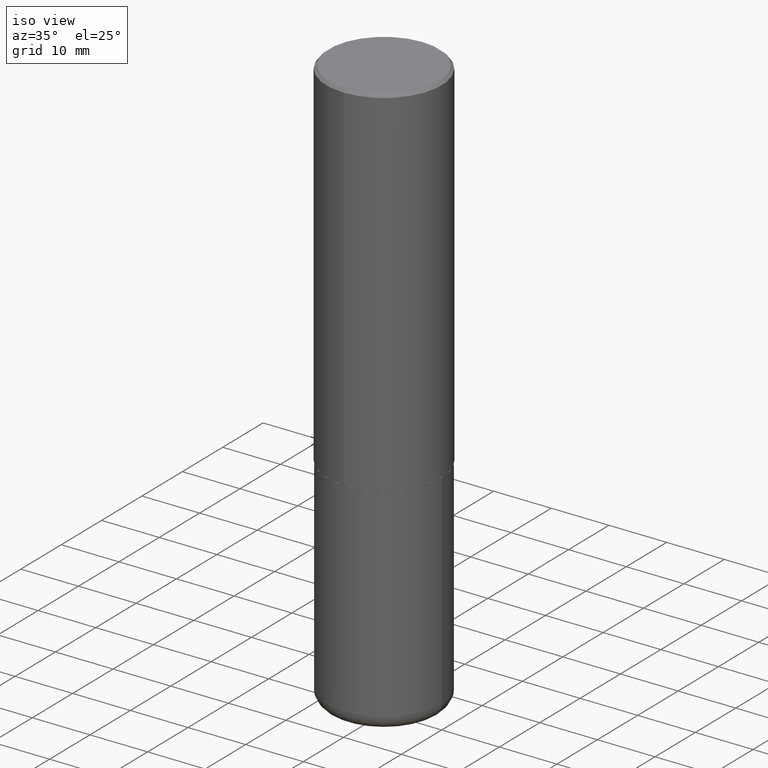
[diagram: clean part render]
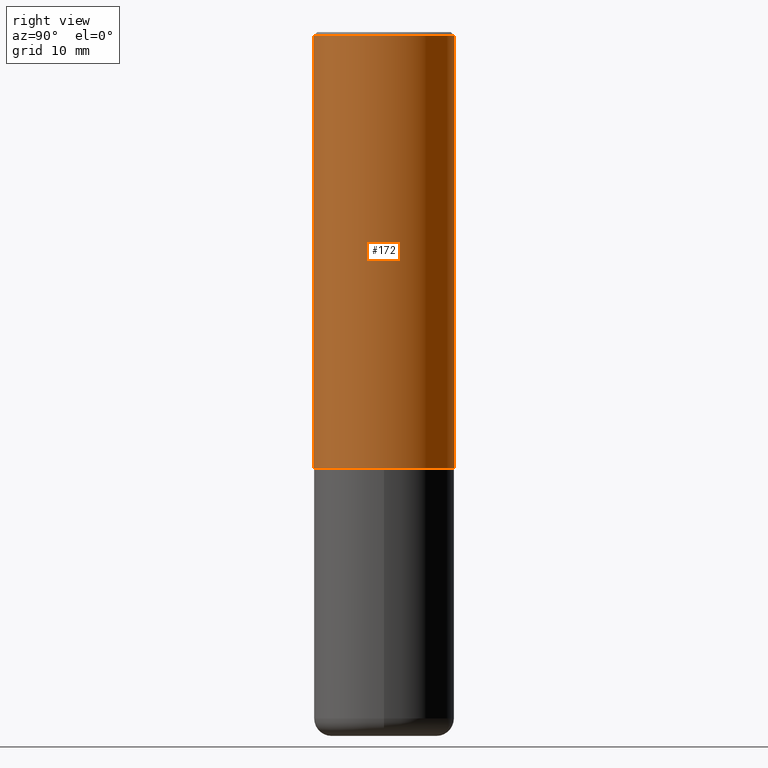
[diagram: tour spotlight — one face highlighted and labeled with its STEP entity id]
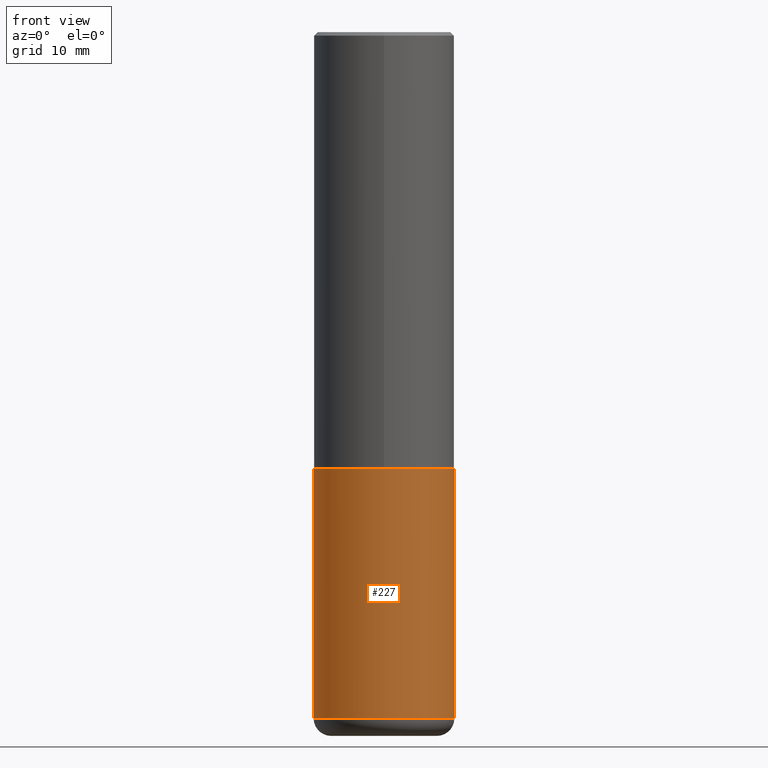
[diagram: tour spotlight — one face highlighted and labeled with its STEP entity id]
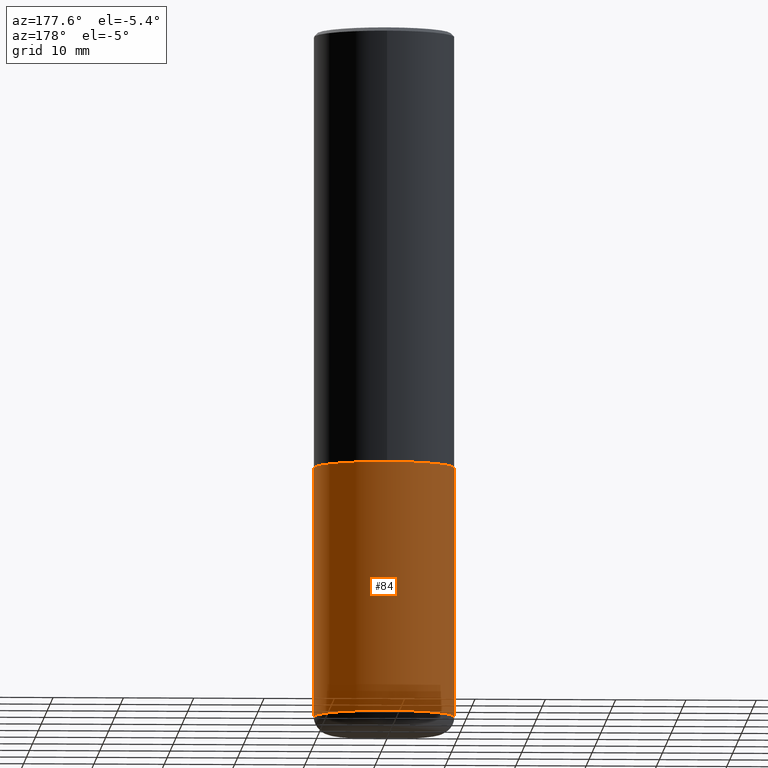
[diagram: tour spotlight — one face highlighted and labeled with its STEP entity id]
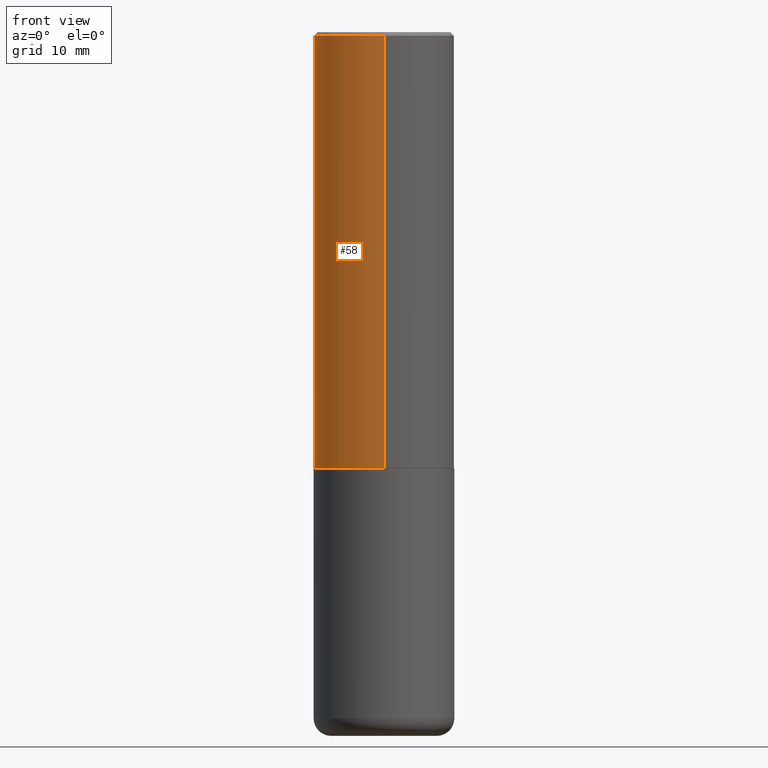
[diagram: tour spotlight — one face highlighted and labeled with its STEP entity id]
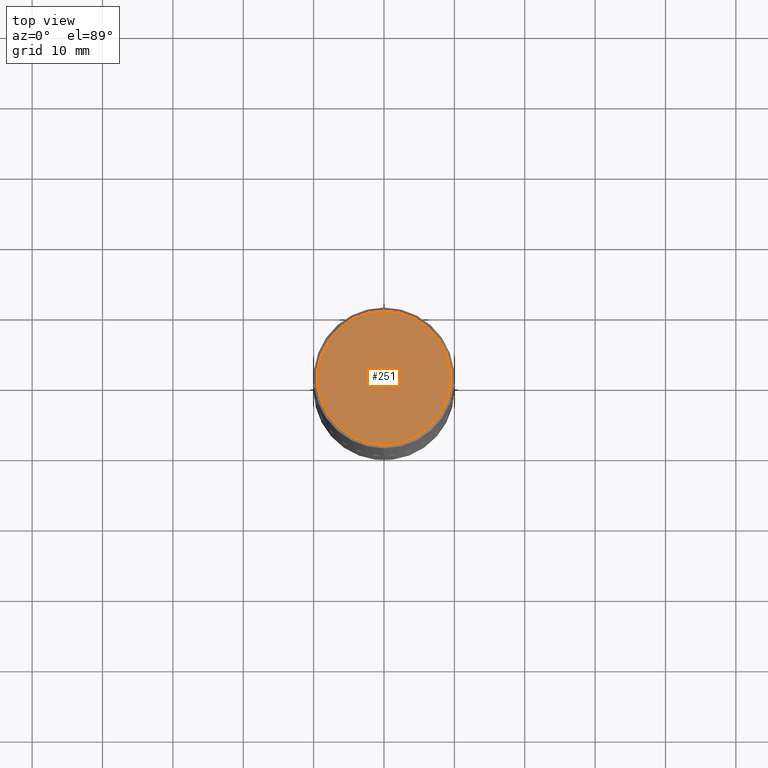
[diagram: tour spotlight — one face highlighted and labeled with its STEP entity id]
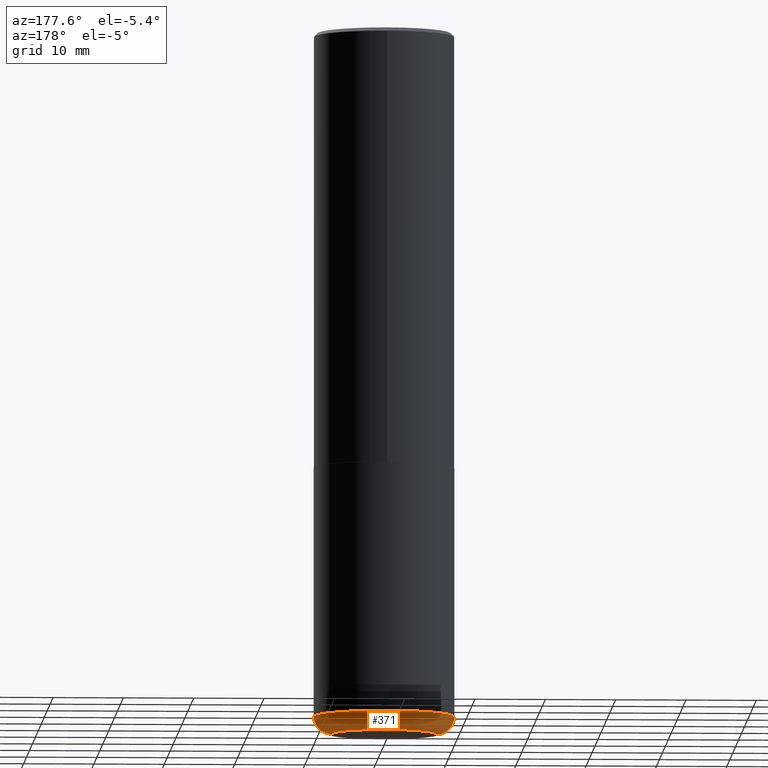
[diagram: tour spotlight — one face highlighted and labeled with its STEP entity id]
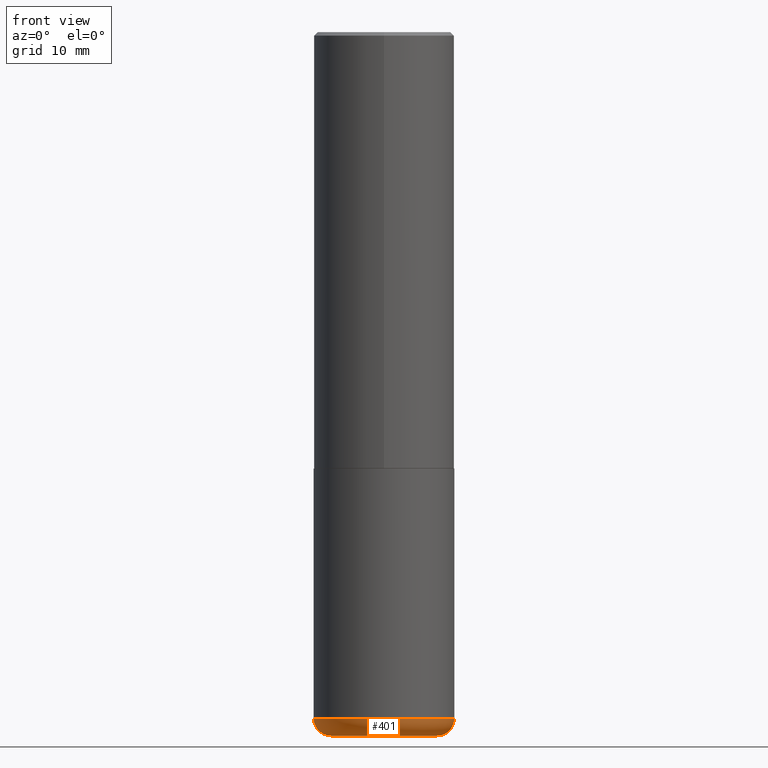
[diagram: tour spotlight — one face highlighted and labeled with its STEP entity id]
A machine part: a face-by-face anatomy tour. The part has 14 B-rep faces; the first image is the clean iso view, then the 7 largest visible faces are spotlighted one at a time (largest first), each with its STEP entity span.

Face 1 — right view, entity #172. In plain terms, the highlighted cylindrical surface (partial cylindrical patch) has radius 10 mm, axis along (-0, 0, 1).
Definition (entity closure, byte-faithful):
#5 = VERTEX_POINT ( 'NONE', #80 ) ;
#7 = CARTESIAN_POINT ( 'NONE',  ( 2.749192406205084005E-15, 0.3937000000000000499, -0.02000000000000146105 ) ) ;
#24 = AXIS2_PLACEMENT_3D ( 'NONE', #356, #162, #60 ) ;
#25 = CARTESIAN_POINT ( 'NONE',  ( 5.968825766271391436E-29, -8.515820155496419489E-15, -2.439900000000000180 ) ) ;
#35 = CIRCLE ( 'NONE', #275, 0.3937000000000003830 ) ;
#36 = VERTEX_POINT ( 'NONE', #7 ) ;
#44 = VERTEX_POINT ( 'NONE', #75 ) ;
#60 = DIRECTION ( 'NONE',  ( -6.982962677686265133E-15, -1.000000000000000000, 3.491137977679279029E-15 ) ) ;
#65 = LINE ( 'NONE', #225, #386 ) ;
#75 = CARTESIAN_POINT ( 'NONE',  ( -2.749192406205025630E-15, -0.3937000000000088762, -2.439899999999998847 ) ) ;
#80 = CARTESIAN_POINT ( 'NONE',  ( 2.797406750687546341E-15, 0.3936999999999918343, -2.439900000000001512 ) ) ;
#86 = CYLINDRICAL_SURFACE ( 'NONE', #148, 0.3937000000000002164 ) ;
#118 = DIRECTION ( 'NONE',  ( -2.446340327993520744E-29, 3.490233270009598583E-15, 1.000000000000000000 ) ) ;
#121 = DIRECTION ( 'NONE',  ( -2.446340327993520744E-29, 3.490233270009598583E-15, 1.000000000000000000 ) ) ;
#123 = DIRECTION ( 'NONE',  ( -2.446340327993520744E-29, 3.490233270009598583E-15, 1.000000000000000000 ) ) ;
#147 = DIRECTION ( 'NONE',  ( -2.446340327993520744E-29, 3.490233270009598583E-15, 1.000000000000000000 ) ) ;
#148 = AXIS2_PLACEMENT_3D ( 'NONE', #320, #147, #288 ) ;
#156 = EDGE_CURVE ( 'NONE', #44, #5, #35, .T. ) ;
#158 = CIRCLE ( 'NONE', #24, 0.3937000000000001054 ) ;
#162 = DIRECTION ( 'NONE',  ( -2.446340327993520744E-29, 3.490233270009598583E-15, 1.000000000000000000 ) ) ;
#164 = ORIENTED_EDGE ( 'NONE', *, *, #364, .F. ) ;
#165 = ORIENTED_EDGE ( 'NONE', *, *, #308, .F. ) ;
#172 = ADVANCED_FACE ( 'NONE', ( #353 ), #86, .T. ) ;
#199 = VERTEX_POINT ( 'NONE', #379 ) ;
#225 = CARTESIAN_POINT ( 'NONE',  ( -2.749192406205084400E-15, -0.3937000000000002164, 1.374104838402779619E-15 ) ) ;
#230 = EDGE_CURVE ( 'NONE', #5, #36, #318, .T. ) ;
#265 = ORIENTED_EDGE ( 'NONE', *, *, #230, .T. ) ;
#275 = AXIS2_PLACEMENT_3D ( 'NONE', #25, #121, #382 ) ;
#288 = DIRECTION ( 'NONE',  ( -6.982962677686265922E-15, -1.000000000000000000, 3.490233270009598189E-15 ) ) ;
#306 = VECTOR ( 'NONE', #118, 39.37007874015748143 ) ;
#308 = EDGE_CURVE ( 'NONE', #199, #36, #158, .T. ) ;
#318 = LINE ( 'NONE', #412, #306 ) ;
#320 = CARTESIAN_POINT ( 'NONE',  ( 0.000000000000000000, 0.000000000000000000, 0.000000000000000000 ) ) ;
#353 = FACE_OUTER_BOUND ( 'NONE', #389, .T. ) ;
#356 = CARTESIAN_POINT ( 'NONE',  ( 4.892680655987062718E-31, -6.980466540019226157E-17, -0.02000000000000008715 ) ) ;
#364 = EDGE_CURVE ( 'NONE', #44, #199, #65, .T. ) ;
#366 = ORIENTED_EDGE ( 'NONE', *, *, #156, .T. ) ;
#379 = CARTESIAN_POINT ( 'NONE',  ( -2.700978061722651647E-15, -0.3937000000000001609, -0.01999999999999870978 ) ) ;
#382 = DIRECTION ( 'NONE',  ( -6.982962677686265133E-15, -1.000000000000000000, 3.469453890861392812E-15 ) ) ;
#386 = VECTOR ( 'NONE', #123, 39.37007874015748143 ) ;
#389 = EDGE_LOOP ( 'NONE', ( #366, #265, #165, #164 ) ) ;
#412 = CARTESIAN_POINT ( 'NONE',  ( 2.797406750687515575E-15, 0.3937000000000002164, -1.374104838402779619E-15 ) ) ;

Face 2 — front view, entity #227. In plain terms, the highlighted cylindrical surface (partial cylindrical patch) has radius 10 mm, axis along (-0, 0, 1).
Definition (entity closure, byte-faithful):
#17 = LINE ( 'NONE', #142, #312 ) ;
#22 = CARTESIAN_POINT ( 'NONE',  ( 5.969144809017300159E-29, -8.522356799982234543E-15, -2.440900000000000070 ) ) ;
#51 = DIRECTION ( 'NONE',  ( -2.445468806185136597E-29, 3.491481338843145583E-15, 1.000000000000000000 ) ) ;
#55 = DIRECTION ( 'NONE',  ( 1.000000000000000000, -6.982962677686266711E-15, 4.876176775795935793E-29 ) ) ;
#61 = CIRCLE ( 'NONE', #96, 0.3937000000000001054 ) ;
#76 = EDGE_CURVE ( 'NONE', #402, #194, #17, .T. ) ;
#83 = DIRECTION ( 'NONE',  ( -2.445468806185136877E-29, 3.491481338843145188E-15, 1.000000000000000000 ) ) ;
#96 = AXIS2_PLACEMENT_3D ( 'NONE', #319, #191, #188 ) ;
#107 = ORIENTED_EDGE ( 'NONE', *, *, #76, .T. ) ;
#132 = VERTEX_POINT ( 'NONE', #408 ) ;
#142 = CARTESIAN_POINT ( 'NONE',  ( 0.3937000000000001054, -2.749192406205084005E-15, 1.919750796630860452E-29 ) ) ;
#144 = CARTESIAN_POINT ( 'NONE',  ( 0.000000000000000000, 0.000000000000000000, 0.000000000000000000 ) ) ;
#149 = EDGE_CURVE ( 'NONE', #418, #402, #61, .T. ) ;
#154 = CARTESIAN_POINT ( 'NONE',  ( 0.3936999999999999389, -1.615159267348838211E-14, -3.838600000000000012 ) ) ;
#186 = DIRECTION ( 'NONE',  ( 1.000000000000000000, -6.982962677686267499E-15, 0.000000000000000000 ) ) ;
#188 = DIRECTION ( 'NONE',  ( 1.000000000000000000, -6.982962677686266711E-15, 0.000000000000000000 ) ) ;
#189 = EDGE_CURVE ( 'NONE', #418, #132, #413, .T. ) ;
#191 = DIRECTION ( 'NONE',  ( -2.445468806185136597E-29, 3.491481338843145583E-15, 1.000000000000000000 ) ) ;
#194 = VERTEX_POINT ( 'NONE', #283 ) ;
#212 = FACE_OUTER_BOUND ( 'NONE', #261, .T. ) ;
#227 = ADVANCED_FACE ( 'NONE', ( #212 ), #349, .T. ) ;
#228 = CARTESIAN_POINT ( 'NONE',  ( -0.3936999999999999389, -1.060499351659578174E-14, -3.838600000000000012 ) ) ;
#234 = ORIENTED_EDGE ( 'NONE', *, *, #149, .T. ) ;
#236 = EDGE_CURVE ( 'NONE', #132, #194, #297, .T. ) ;
#261 = EDGE_LOOP ( 'NONE', ( #337, #234, #107, #416 ) ) ;
#263 = AXIS2_PLACEMENT_3D ( 'NONE', #144, #409, #55 ) ;
#279 = DIRECTION ( 'NONE',  ( -2.445468806185136877E-29, 3.491481338843145188E-15, 1.000000000000000000 ) ) ;
#283 = CARTESIAN_POINT ( 'NONE',  ( 0.3937000000000000499, -1.127154920618731776E-14, -2.440900000000000070 ) ) ;
#285 = CARTESIAN_POINT ( 'NONE',  ( -0.3937000000000001054, 2.797406750687515181E-15, -1.936584745033357016E-29 ) ) ;
#297 = CIRCLE ( 'NONE', #358, 0.3937000000000000499 ) ;
#312 = VECTOR ( 'NONE', #279, 39.37007874015748143 ) ;
#319 = CARTESIAN_POINT ( 'NONE',  ( 9.387176559422264284E-29, -1.340240026728329889E-14, -3.838600000000000012 ) ) ;
#337 = ORIENTED_EDGE ( 'NONE', *, *, #189, .F. ) ;
#338 = VECTOR ( 'NONE', #83, 39.37007874015748143 ) ;
#349 = CYLINDRICAL_SURFACE ( 'NONE', #263, 0.3937000000000001054 ) ;
#358 = AXIS2_PLACEMENT_3D ( 'NONE', #22, #51, #186 ) ;
#402 = VERTEX_POINT ( 'NONE', #154 ) ;
#408 = CARTESIAN_POINT ( 'NONE',  ( -0.3937000000000000499, -8.164971782945251142E-15, -2.440900000000000070 ) ) ;
#409 = DIRECTION ( 'NONE',  ( -2.445468806185136597E-29, 3.491481338843145583E-15, 1.000000000000000000 ) ) ;
#413 = LINE ( 'NONE', #285, #338 ) ;
#416 = ORIENTED_EDGE ( 'NONE', *, *, #236, .F. ) ;
#418 = VERTEX_POINT ( 'NONE', #228 ) ;

Face 3 — auxiliary view, entity #84. In plain terms, the highlighted cylindrical surface (partial cylindrical patch) has radius 10 mm, axis along (-0, 0, 1).
Definition (entity closure, byte-faithful):
#17 = LINE ( 'NONE', #142, #312 ) ;
#26 = ORIENTED_EDGE ( 'NONE', *, *, #219, .F. ) ;
#64 = ORIENTED_EDGE ( 'NONE', *, *, #76, .F. ) ;
#69 = DIRECTION ( 'NONE',  ( -2.445468806185136597E-29, 3.491481338843145583E-15, 1.000000000000000000 ) ) ;
#74 = CIRCLE ( 'NONE', #347, 0.3937000000000000499 ) ;
#76 = EDGE_CURVE ( 'NONE', #402, #194, #17, .T. ) ;
#83 = DIRECTION ( 'NONE',  ( -2.445468806185136877E-29, 3.491481338843145188E-15, 1.000000000000000000 ) ) ;
#84 = ADVANCED_FACE ( 'NONE', ( #407 ), #247, .T. ) ;
#95 = EDGE_LOOP ( 'NONE', ( #267, #229, #26, #64 ) ) ;
#117 = DIRECTION ( 'NONE',  ( -2.445468806185136597E-29, 3.491481338843145583E-15, 1.000000000000000000 ) ) ;
#132 = VERTEX_POINT ( 'NONE', #408 ) ;
#142 = CARTESIAN_POINT ( 'NONE',  ( 0.3937000000000001054, -2.749192406205084005E-15, 1.919750796630860452E-29 ) ) ;
#154 = CARTESIAN_POINT ( 'NONE',  ( 0.3936999999999999389, -1.615159267348838211E-14, -3.838600000000000012 ) ) ;
#176 = AXIS2_PLACEMENT_3D ( 'NONE', #317, #117, #252 ) ;
#189 = EDGE_CURVE ( 'NONE', #418, #132, #413, .T. ) ;
#194 = VERTEX_POINT ( 'NONE', #283 ) ;
#202 = DIRECTION ( 'NONE',  ( 1.000000000000000000, -6.982962677686266711E-15, 4.876176775795935793E-29 ) ) ;
#213 = DIRECTION ( 'NONE',  ( 1.000000000000000000, -6.982962677686267499E-15, 0.000000000000000000 ) ) ;
#219 = EDGE_CURVE ( 'NONE', #194, #132, #74, .T. ) ;
#228 = CARTESIAN_POINT ( 'NONE',  ( -0.3936999999999999389, -1.060499351659578174E-14, -3.838600000000000012 ) ) ;
#229 = ORIENTED_EDGE ( 'NONE', *, *, #189, .T. ) ;
#247 = CYLINDRICAL_SURFACE ( 'NONE', #282, 0.3937000000000001054 ) ;
#248 = EDGE_CURVE ( 'NONE', #402, #418, #414, .T. ) ;
#252 = DIRECTION ( 'NONE',  ( 1.000000000000000000, -6.982962677686266711E-15, 0.000000000000000000 ) ) ;
#267 = ORIENTED_EDGE ( 'NONE', *, *, #248, .T. ) ;
#271 = CARTESIAN_POINT ( 'NONE',  ( 0.000000000000000000, 0.000000000000000000, 0.000000000000000000 ) ) ;
#279 = DIRECTION ( 'NONE',  ( -2.445468806185136877E-29, 3.491481338843145188E-15, 1.000000000000000000 ) ) ;
#282 = AXIS2_PLACEMENT_3D ( 'NONE', #271, #69, #202 ) ;
#283 = CARTESIAN_POINT ( 'NONE',  ( 0.3937000000000000499, -1.127154920618731776E-14, -2.440900000000000070 ) ) ;
#285 = CARTESIAN_POINT ( 'NONE',  ( -0.3937000000000001054, 2.797406750687515181E-15, -1.936584745033357016E-29 ) ) ;
#312 = VECTOR ( 'NONE', #279, 39.37007874015748143 ) ;
#315 = DIRECTION ( 'NONE',  ( -2.445468806185136597E-29, 3.491481338843145583E-15, 1.000000000000000000 ) ) ;
#317 = CARTESIAN_POINT ( 'NONE',  ( 9.387176559422264284E-29, -1.340240026728329889E-14, -3.838600000000000012 ) ) ;
#338 = VECTOR ( 'NONE', #83, 39.37007874015748143 ) ;
#347 = AXIS2_PLACEMENT_3D ( 'NONE', #350, #315, #213 ) ;
#350 = CARTESIAN_POINT ( 'NONE',  ( 5.969144809017300159E-29, -8.522356799982234543E-15, -2.440900000000000070 ) ) ;
#402 = VERTEX_POINT ( 'NONE', #154 ) ;
#407 = FACE_OUTER_BOUND ( 'NONE', #95, .T. ) ;
#408 = CARTESIAN_POINT ( 'NONE',  ( -0.3937000000000000499, -8.164971782945251142E-15, -2.440900000000000070 ) ) ;
#413 = LINE ( 'NONE', #285, #338 ) ;
#414 = CIRCLE ( 'NONE', #176, 0.3937000000000001054 ) ;
#418 = VERTEX_POINT ( 'NONE', #228 ) ;

Face 4 — front view, entity #58. In plain terms, the highlighted cylindrical surface (partial cylindrical patch) has radius 10 mm, axis along (-0, 0, 1).
Definition (entity closure, byte-faithful):
#5 = VERTEX_POINT ( 'NONE', #80 ) ;
#7 = CARTESIAN_POINT ( 'NONE',  ( 2.749192406205084005E-15, 0.3937000000000000499, -0.02000000000000146105 ) ) ;
#11 = AXIS2_PLACEMENT_3D ( 'NONE', #184, #190, #18 ) ;
#18 = DIRECTION ( 'NONE',  ( -6.982962677686265133E-15, -1.000000000000000000, 3.491137977679279029E-15 ) ) ;
#33 = ORIENTED_EDGE ( 'NONE', *, *, #364, .T. ) ;
#36 = VERTEX_POINT ( 'NONE', #7 ) ;
#44 = VERTEX_POINT ( 'NONE', #75 ) ;
#58 = ADVANCED_FACE ( 'NONE', ( #78 ), #314, .T. ) ;
#65 = LINE ( 'NONE', #225, #386 ) ;
#75 = CARTESIAN_POINT ( 'NONE',  ( -2.749192406205025630E-15, -0.3937000000000088762, -2.439899999999998847 ) ) ;
#78 = FACE_OUTER_BOUND ( 'NONE', #373, .T. ) ;
#80 = CARTESIAN_POINT ( 'NONE',  ( 2.797406750687546341E-15, 0.3936999999999918343, -2.439900000000001512 ) ) ;
#118 = DIRECTION ( 'NONE',  ( -2.446340327993520744E-29, 3.490233270009598583E-15, 1.000000000000000000 ) ) ;
#123 = DIRECTION ( 'NONE',  ( -2.446340327993520744E-29, 3.490233270009598583E-15, 1.000000000000000000 ) ) ;
#139 = DIRECTION ( 'NONE',  ( -6.982962677686265922E-15, -1.000000000000000000, 3.490233270009598189E-15 ) ) ;
#146 = EDGE_CURVE ( 'NONE', #5, #44, #221, .T. ) ;
#152 = DIRECTION ( 'NONE',  ( -6.982962677686265133E-15, -1.000000000000000000, 3.469453890861392812E-15 ) ) ;
#177 = CARTESIAN_POINT ( 'NONE',  ( 0.000000000000000000, 0.000000000000000000, 0.000000000000000000 ) ) ;
#184 = CARTESIAN_POINT ( 'NONE',  ( 4.892680655987062718E-31, -6.980466540019226157E-17, -0.02000000000000008715 ) ) ;
#190 = DIRECTION ( 'NONE',  ( -2.446340327993520744E-29, 3.490233270009598583E-15, 1.000000000000000000 ) ) ;
#195 = CIRCLE ( 'NONE', #11, 0.3937000000000001054 ) ;
#199 = VERTEX_POINT ( 'NONE', #379 ) ;
#221 = CIRCLE ( 'NONE', #241, 0.3937000000000003830 ) ;
#225 = CARTESIAN_POINT ( 'NONE',  ( -2.749192406205084400E-15, -0.3937000000000002164, 1.374104838402779619E-15 ) ) ;
#230 = EDGE_CURVE ( 'NONE', #5, #36, #318, .T. ) ;
#241 = AXIS2_PLACEMENT_3D ( 'NONE', #410, #284, #152 ) ;
#278 = EDGE_CURVE ( 'NONE', #36, #199, #195, .T. ) ;
#284 = DIRECTION ( 'NONE',  ( -2.446340327993520744E-29, 3.490233270009598583E-15, 1.000000000000000000 ) ) ;
#306 = VECTOR ( 'NONE', #118, 39.37007874015748143 ) ;
#309 = DIRECTION ( 'NONE',  ( -2.446340327993520744E-29, 3.490233270009598583E-15, 1.000000000000000000 ) ) ;
#314 = CYLINDRICAL_SURFACE ( 'NONE', #351, 0.3937000000000002164 ) ;
#318 = LINE ( 'NONE', #412, #306 ) ;
#330 = ORIENTED_EDGE ( 'NONE', *, *, #230, .F. ) ;
#351 = AXIS2_PLACEMENT_3D ( 'NONE', #177, #309, #139 ) ;
#364 = EDGE_CURVE ( 'NONE', #44, #199, #65, .T. ) ;
#369 = ORIENTED_EDGE ( 'NONE', *, *, #146, .T. ) ;
#373 = EDGE_LOOP ( 'NONE', ( #330, #369, #33, #394 ) ) ;
#379 = CARTESIAN_POINT ( 'NONE',  ( -2.700978061722651647E-15, -0.3937000000000001609, -0.01999999999999870978 ) ) ;
#386 = VECTOR ( 'NONE', #123, 39.37007874015748143 ) ;
#394 = ORIENTED_EDGE ( 'NONE', *, *, #278, .F. ) ;
#410 = CARTESIAN_POINT ( 'NONE',  ( 5.968825766271391436E-29, -8.515820155496419489E-15, -2.439900000000000180 ) ) ;
#412 = CARTESIAN_POINT ( 'NONE',  ( 2.797406750687515575E-15, 0.3937000000000002164, -1.374104838402779619E-15 ) ) ;

Face 5 — top view, entity #251. In plain terms, the highlighted planar face has unit normal (0, -0, -1).
Definition (entity closure, byte-faithful):
#21 = DIRECTION ( 'NONE',  ( -6.982962677686265922E-15, -1.000000000000000000, 3.490233270009598978E-15 ) ) ;
#23 = CARTESIAN_POINT ( 'NONE',  ( -2.632373081744935132E-15, -0.3736999999999997546, 1.628240718927121042E-15 ) ) ;
#50 = DIRECTION ( 'NONE',  ( 6.982962677686265922E-15, 1.000000000000000000, -3.490233270009598583E-15 ) ) ;
#57 = DIRECTION ( 'NONE',  ( 2.446340327993520464E-29, -3.490233270009598583E-15, -1.000000000000000000 ) ) ;
#63 = VERTEX_POINT ( 'NONE', #303 ) ;
#126 = CARTESIAN_POINT ( 'NONE',  ( -7.924688213674265849E-45, 1.130628070890883733E-30, 3.239405459245348190E-16 ) ) ;
#143 = EDGE_CURVE ( 'NONE', #174, #63, #380, .T. ) ;
#145 = AXIS2_PLACEMENT_3D ( 'NONE', #126, #355, #361 ) ;
#174 = VERTEX_POINT ( 'NONE', #23 ) ;
#192 = ORIENTED_EDGE ( 'NONE', *, *, #368, .T. ) ;
#215 = AXIS2_PLACEMENT_3D ( 'NONE', #348, #57, #50 ) ;
#220 = FACE_OUTER_BOUND ( 'NONE', #226, .T. ) ;
#223 = DIRECTION ( 'NONE',  ( -2.446340327993520744E-29, 3.490233270009598583E-15, 1.000000000000000000 ) ) ;
#226 = EDGE_LOOP ( 'NONE', ( #192, #325 ) ) ;
#251 = ADVANCED_FACE ( 'NONE', ( #220 ), #352, .F. ) ;
#303 = CARTESIAN_POINT ( 'NONE',  ( 2.679362779428219524E-15, 0.3736999999999997546, -9.803596270780514040E-16 ) ) ;
#325 = ORIENTED_EDGE ( 'NONE', *, *, #143, .T. ) ;
#344 = CIRCLE ( 'NONE', #145, 0.3736999999999997546 ) ;
#348 = CARTESIAN_POINT ( 'NONE',  ( 2.609533152651355831E-15, 0.3736999999999997546, -1.142329900040318863E-15 ) ) ;
#352 = PLANE ( 'NONE',  #215 ) ;
#355 = DIRECTION ( 'NONE',  ( -2.446340327993520744E-29, 3.490233270009598583E-15, 1.000000000000000000 ) ) ;
#361 = DIRECTION ( 'NONE',  ( -6.982962677686265922E-15, -1.000000000000000000, 3.490233270009598978E-15 ) ) ;
#367 = AXIS2_PLACEMENT_3D ( 'NONE', #384, #223, #21 ) ;
#368 = EDGE_CURVE ( 'NONE', #63, #174, #344, .T. ) ;
#380 = CIRCLE ( 'NONE', #367, 0.3736999999999997546 ) ;
#384 = CARTESIAN_POINT ( 'NONE',  ( -7.924688213674265849E-45, 1.130628070890883733E-30, 3.239405459245348190E-16 ) ) ;

Face 6 — auxiliary view, entity #371. In plain terms, the highlighted toroidal blend (fillet) surface has major radius 7.5006 mm and minor (blend) radius 2.4994 mm.
Definition (entity closure, byte-faithful):
#1 = CARTESIAN_POINT ( 'NONE',  ( 0.2953000000000000069, -1.546446914600405306E-14, -3.838600000000000012 ) ) ;
#4 = ORIENTED_EDGE ( 'NONE', *, *, #339, .F. ) ;
#28 = DIRECTION ( 'NONE',  ( 1.000000000000000000, -6.982962677686270655E-15, 0.000000000000000000 ) ) ;
#54 = AXIS2_PLACEMENT_3D ( 'NONE', #298, #331, #324 ) ;
#70 = TOROIDAL_SURFACE ( 'NONE', #54, 0.2953000000000000069, 0.09839999999999987645 ) ;
#93 = DIRECTION ( 'NONE',  ( 1.000000000000000000, -6.982962677686271444E-15, 0.000000000000000000 ) ) ;
#100 = AXIS2_PLACEMENT_3D ( 'NONE', #293, #397, #28 ) ;
#102 = VERTEX_POINT ( 'NONE', #135 ) ;
#105 = ORIENTED_EDGE ( 'NONE', *, *, #130, .T. ) ;
#115 = CARTESIAN_POINT ( 'NONE',  ( -0.2953000000000000069, -1.130416756858372220E-14, -3.838600000000000012 ) ) ;
#117 = DIRECTION ( 'NONE',  ( -2.445468806185136597E-29, 3.491481338843145583E-15, 1.000000000000000000 ) ) ;
#130 = EDGE_CURVE ( 'NONE', #102, #418, #262, .T. ) ;
#135 = CARTESIAN_POINT ( 'NONE',  ( -0.2953000000000000069, -1.112636142446083581E-14, -3.936999999999999389 ) ) ;
#136 = EDGE_LOOP ( 'NONE', ( #406, #105, #360, #4 ) ) ;
#154 = CARTESIAN_POINT ( 'NONE',  ( 0.3936999999999999389, -1.615159267348838211E-14, -3.838600000000000012 ) ) ;
#157 = DIRECTION ( 'NONE',  ( -6.982962677686266711E-15, -1.000000000000000000, 3.491481338843145583E-15 ) ) ;
#176 = AXIS2_PLACEMENT_3D ( 'NONE', #317, #117, #252 ) ;
#228 = CARTESIAN_POINT ( 'NONE',  ( -0.3936999999999999389, -1.060499351659578174E-14, -3.838600000000000012 ) ) ;
#239 = CIRCLE ( 'NONE', #100, 0.2953000000000000069 ) ;
#248 = EDGE_CURVE ( 'NONE', #402, #418, #414, .T. ) ;
#252 = DIRECTION ( 'NONE',  ( 1.000000000000000000, -6.982962677686266711E-15, 0.000000000000000000 ) ) ;
#262 = CIRCLE ( 'NONE', #269, 0.09839999999999986258 ) ;
#269 = AXIS2_PLACEMENT_3D ( 'NONE', #115, #281, #381 ) ;
#281 = DIRECTION ( 'NONE',  ( 7.105427357601001859E-15, 1.000000000000000000, -3.491481338843145583E-15 ) ) ;
#291 = VERTEX_POINT ( 'NONE', #395 ) ;
#293 = CARTESIAN_POINT ( 'NONE',  ( 9.627810689950881427E-29, -1.374596203102546184E-14, -3.936999999999999389 ) ) ;
#298 = CARTESIAN_POINT ( 'NONE',  ( 9.387176559422264284E-29, -1.340240026728329889E-14, -3.838600000000000012 ) ) ;
#317 = CARTESIAN_POINT ( 'NONE',  ( 9.387176559422264284E-29, -1.340240026728329889E-14, -3.838600000000000012 ) ) ;
#323 = EDGE_CURVE ( 'NONE', #291, #102, #239, .T. ) ;
#324 = DIRECTION ( 'NONE',  ( 1.000000000000000000, -6.982962677686265922E-15, 4.883557194083112340E-29 ) ) ;
#331 = DIRECTION ( 'NONE',  ( -2.445468806185136597E-29, 3.491481338843145583E-15, 1.000000000000000000 ) ) ;
#339 = EDGE_CURVE ( 'NONE', #291, #402, #383, .T. ) ;
#360 = ORIENTED_EDGE ( 'NONE', *, *, #248, .F. ) ;
#362 = AXIS2_PLACEMENT_3D ( 'NONE', #1, #157, #93 ) ;
#371 = ADVANCED_FACE ( 'NONE', ( #388 ), #70, .T. ) ;
#381 = DIRECTION ( 'NONE',  ( -1.000000000000000000, 7.105427357601009747E-15, 0.000000000000000000 ) ) ;
#383 = CIRCLE ( 'NONE', #362, 0.09839999999999986258 ) ;
#388 = FACE_OUTER_BOUND ( 'NONE', #136, .T. ) ;
#395 = CARTESIAN_POINT ( 'NONE',  ( 0.2953000000000000069, -1.580803090974621758E-14, -3.936999999999999389 ) ) ;
#397 = DIRECTION ( 'NONE',  ( -2.445468806185136597E-29, 3.491481338843145583E-15, 1.000000000000000000 ) ) ;
#402 = VERTEX_POINT ( 'NONE', #154 ) ;
#406 = ORIENTED_EDGE ( 'NONE', *, *, #323, .T. ) ;
#414 = CIRCLE ( 'NONE', #176, 0.3937000000000001054 ) ;
#418 = VERTEX_POINT ( 'NONE', #228 ) ;

Face 7 — front view, entity #401. In plain terms, the highlighted toroidal blend (fillet) surface has major radius 7.5006 mm and minor (blend) radius 2.4994 mm.
Definition (entity closure, byte-faithful):
#1 = CARTESIAN_POINT ( 'NONE',  ( 0.2953000000000000069, -1.546446914600405306E-14, -3.838600000000000012 ) ) ;
#37 = FACE_OUTER_BOUND ( 'NONE', #404, .T. ) ;
#45 = AXIS2_PLACEMENT_3D ( 'NONE', #193, #99, #417 ) ;
#59 = DIRECTION ( 'NONE',  ( -2.445468806185136597E-29, 3.491481338843145583E-15, 1.000000000000000000 ) ) ;
#61 = CIRCLE ( 'NONE', #96, 0.3937000000000001054 ) ;
#85 = CARTESIAN_POINT ( 'NONE',  ( 9.627810689950881427E-29, -1.374596203102546184E-14, -3.936999999999999389 ) ) ;
#93 = DIRECTION ( 'NONE',  ( 1.000000000000000000, -6.982962677686271444E-15, 0.000000000000000000 ) ) ;
#96 = AXIS2_PLACEMENT_3D ( 'NONE', #319, #191, #188 ) ;
#99 = DIRECTION ( 'NONE',  ( -2.445468806185136597E-29, 3.491481338843145583E-15, 1.000000000000000000 ) ) ;
#102 = VERTEX_POINT ( 'NONE', #135 ) ;
#115 = CARTESIAN_POINT ( 'NONE',  ( -0.2953000000000000069, -1.130416756858372220E-14, -3.838600000000000012 ) ) ;
#116 = AXIS2_PLACEMENT_3D ( 'NONE', #85, #59, #217 ) ;
#124 = ORIENTED_EDGE ( 'NONE', *, *, #163, .T. ) ;
#130 = EDGE_CURVE ( 'NONE', #102, #418, #262, .T. ) ;
#133 = CIRCLE ( 'NONE', #116, 0.2953000000000000069 ) ;
#135 = CARTESIAN_POINT ( 'NONE',  ( -0.2953000000000000069, -1.112636142446083581E-14, -3.936999999999999389 ) ) ;
#149 = EDGE_CURVE ( 'NONE', #418, #402, #61, .T. ) ;
#154 = CARTESIAN_POINT ( 'NONE',  ( 0.3936999999999999389, -1.615159267348838211E-14, -3.838600000000000012 ) ) ;
#157 = DIRECTION ( 'NONE',  ( -6.982962677686266711E-15, -1.000000000000000000, 3.491481338843145583E-15 ) ) ;
#163 = EDGE_CURVE ( 'NONE', #102, #291, #133, .T. ) ;
#169 = TOROIDAL_SURFACE ( 'NONE', #45, 0.2953000000000000069, 0.09839999999999987645 ) ;
#188 = DIRECTION ( 'NONE',  ( 1.000000000000000000, -6.982962677686266711E-15, 0.000000000000000000 ) ) ;
#191 = DIRECTION ( 'NONE',  ( -2.445468806185136597E-29, 3.491481338843145583E-15, 1.000000000000000000 ) ) ;
#193 = CARTESIAN_POINT ( 'NONE',  ( 9.387176559422264284E-29, -1.340240026728329889E-14, -3.838600000000000012 ) ) ;
#217 = DIRECTION ( 'NONE',  ( 1.000000000000000000, -6.982962677686270655E-15, 0.000000000000000000 ) ) ;
#228 = CARTESIAN_POINT ( 'NONE',  ( -0.3936999999999999389, -1.060499351659578174E-14, -3.838600000000000012 ) ) ;
#243 = ORIENTED_EDGE ( 'NONE', *, *, #130, .F. ) ;
#257 = ORIENTED_EDGE ( 'NONE', *, *, #339, .T. ) ;
#262 = CIRCLE ( 'NONE', #269, 0.09839999999999986258 ) ;
#269 = AXIS2_PLACEMENT_3D ( 'NONE', #115, #281, #381 ) ;
#281 = DIRECTION ( 'NONE',  ( 7.105427357601001859E-15, 1.000000000000000000, -3.491481338843145583E-15 ) ) ;
#291 = VERTEX_POINT ( 'NONE', #395 ) ;
#319 = CARTESIAN_POINT ( 'NONE',  ( 9.387176559422264284E-29, -1.340240026728329889E-14, -3.838600000000000012 ) ) ;
#322 = ORIENTED_EDGE ( 'NONE', *, *, #149, .F. ) ;
#339 = EDGE_CURVE ( 'NONE', #291, #402, #383, .T. ) ;
#362 = AXIS2_PLACEMENT_3D ( 'NONE', #1, #157, #93 ) ;
#381 = DIRECTION ( 'NONE',  ( -1.000000000000000000, 7.105427357601009747E-15, 0.000000000000000000 ) ) ;
#383 = CIRCLE ( 'NONE', #362, 0.09839999999999986258 ) ;
#395 = CARTESIAN_POINT ( 'NONE',  ( 0.2953000000000000069, -1.580803090974621758E-14, -3.936999999999999389 ) ) ;
#401 = ADVANCED_FACE ( 'NONE', ( #37 ), #169, .T. ) ;
#402 = VERTEX_POINT ( 'NONE', #154 ) ;
#404 = EDGE_LOOP ( 'NONE', ( #243, #124, #257, #322 ) ) ;
#417 = DIRECTION ( 'NONE',  ( 1.000000000000000000, -6.982962677686265922E-15, 4.883557194083112340E-29 ) ) ;
#418 = VERTEX_POINT ( 'NONE', #228 ) ;